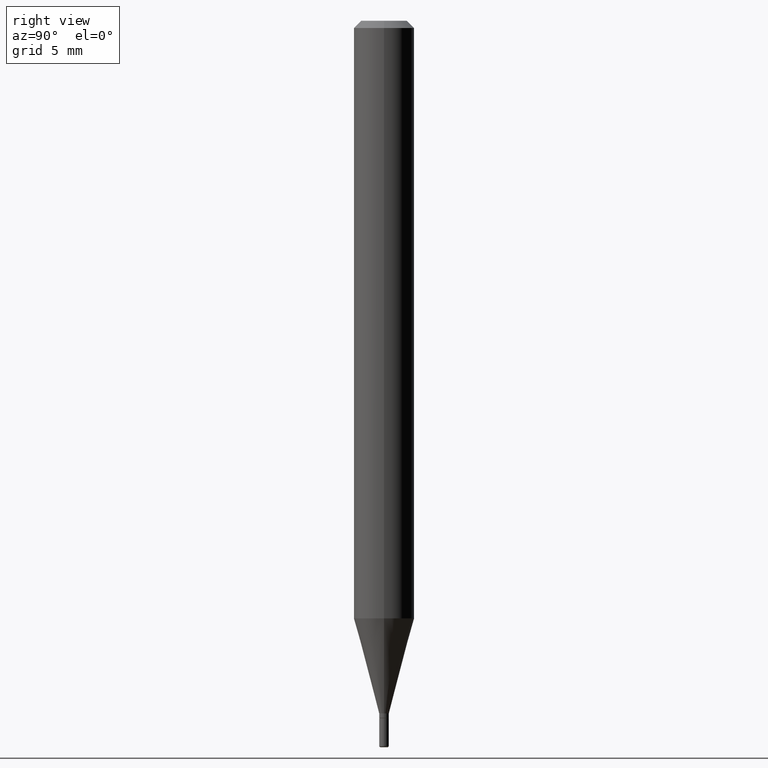
[diagram: clean part render]
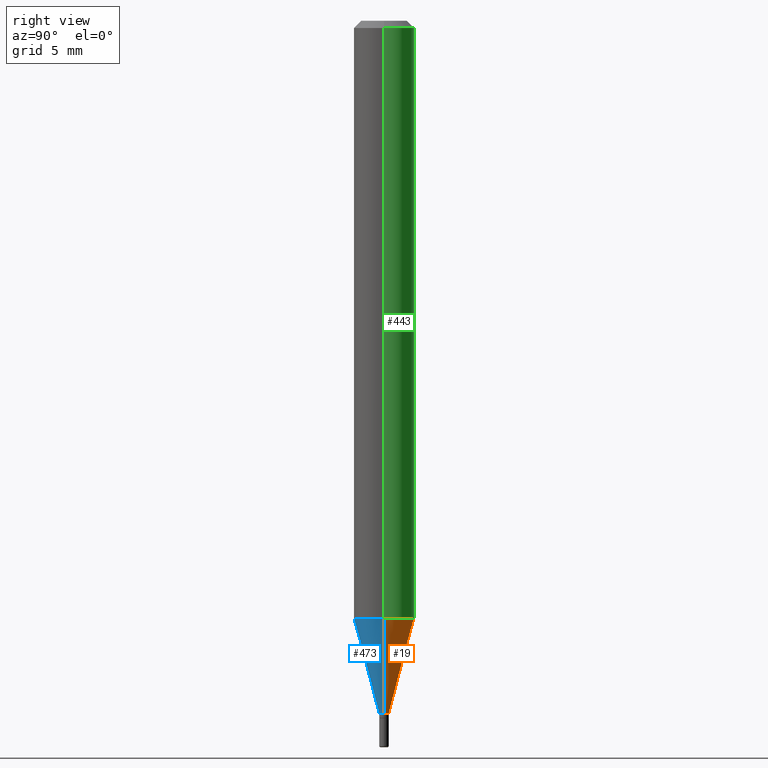
[diagram: same view with three faces highlighted in distinct colors, each labeled with its STEP entity id]
A machine part, right view with three faces highlighted in distinct colors.
Their STEP definitions:

[orange] entity #19 — the highlighted conical surface has half-angle 15 deg.
#19 = ADVANCED_FACE ( 'NONE', ( #210 ), #448, .T. ) ;
#35 = EDGE_CURVE ( 'NONE', #464, #444, #43, .T. ) ;
#43 = CIRCLE ( 'NONE', #209, 0.009999999999999911737 ) ;
#50 = CARTESIAN_POINT ( 'NONE',  ( 0.009999999999999911737, -5.062647941322559142E-15, -1.429999999999999716 ) ) ;
#53 = DIRECTION ( 'NONE',  ( -2.445468806185136597E-29, 3.491481338843145583E-15, 1.000000000000000000 ) ) ;
#89 = ORIENTED_EDGE ( 'NONE', *, *, #35, .T. ) ;
#120 = DIRECTION ( 'NONE',  ( 1.000000000000000000, -6.982962677686262766E-15, 0.000000000000000000 ) ) ;
#131 = AXIS2_PLACEMENT_3D ( 'NONE', #319, #507, #120 ) ;
#139 = AXIS2_PLACEMENT_3D ( 'NONE', #484, #53, #211 ) ;
#143 = LINE ( 'NONE', #465, #262 ) ;
#169 = DIRECTION ( 'NONE',  ( 0.2588190451025205729, 1.565188264969628081E-15, 0.9659258262890684232 ) ) ;
#170 = CARTESIAN_POINT ( 'NONE',  ( 0.009999999999999911737, -5.062647941322559142E-15, -1.429999999999999716 ) ) ;
#197 = EDGE_CURVE ( 'NONE', #444, #274, #143, .T. ) ;
#203 = CARTESIAN_POINT ( 'NONE',  ( -0.06249999999999999306, -3.864633852807968480E-15, -1.234067332602633238 ) ) ;
#209 = AXIS2_PLACEMENT_3D ( 'NONE', #321, #478, #338 ) ;
#210 = FACE_OUTER_BOUND ( 'NONE', #481, .T. ) ;
#211 = DIRECTION ( 'NONE',  ( 1.000000000000000000, -6.982962677686297476E-15, 0.000000000000000000 ) ) ;
#227 = CIRCLE ( 'NONE', #131, 0.06250000000000000000 ) ;
#262 = VECTOR ( 'NONE', #300, 39.37007874015748143 ) ;
#274 = VERTEX_POINT ( 'NONE', #203 ) ;
#278 = ORIENTED_EDGE ( 'NONE', *, *, #335, .F. ) ;
#293 = LINE ( 'NONE', #170, #413 ) ;
#300 = DIRECTION ( 'NONE',  ( -0.2588190451025205729, 5.211531920934545520E-15, 0.9659258262890684232 ) ) ;
#306 = VERTEX_POINT ( 'NONE', #348 ) ;
#319 = CARTESIAN_POINT ( 'NONE',  ( 3.017873166611837280E-29, -4.308723062658031096E-15, -1.234067332602633238 ) ) ;
#321 = CARTESIAN_POINT ( 'NONE',  ( 3.497020392844744638E-29, -4.992818314545696633E-15, -1.429999999999999716 ) ) ;
#327 = CARTESIAN_POINT ( 'NONE',  ( -0.009999999999999911737, -4.393198946888827121E-15, -1.429999999999999716 ) ) ;
#335 = EDGE_CURVE ( 'NONE', #306, #274, #227, .T. ) ;
#338 = DIRECTION ( 'NONE',  ( 1.000000000000000000, -6.982962677686297476E-15, 0.000000000000000000 ) ) ;
#348 = CARTESIAN_POINT ( 'NONE',  ( 0.06249999999999999306, -4.745158230013422766E-15, -1.234067332602633238 ) ) ;
#379 = EDGE_CURVE ( 'NONE', #464, #306, #293, .T. ) ;
#413 = VECTOR ( 'NONE', #169, 39.37007874015748143 ) ;
#427 = ORIENTED_EDGE ( 'NONE', *, *, #197, .T. ) ;
#444 = VERTEX_POINT ( 'NONE', #327 ) ;
#448 = CONICAL_SURFACE ( 'NONE', #139, 0.009999999999999911737, 0.2617993877991492413 ) ;
#464 = VERTEX_POINT ( 'NONE', #50 ) ;
#465 = CARTESIAN_POINT ( 'NONE',  ( -0.009999999999999911737, -4.921764040969687340E-15, -1.429999999999999716 ) ) ;
#478 = DIRECTION ( 'NONE',  ( -2.445468806185136597E-29, 3.491481338843145583E-15, 1.000000000000000000 ) ) ;
#481 = EDGE_LOOP ( 'NONE', ( #89, #427, #278, #516 ) ) ;
#484 = CARTESIAN_POINT ( 'NONE',  ( 3.497020392844744638E-29, -4.992818314545696633E-15, -1.429999999999999716 ) ) ;
#507 = DIRECTION ( 'NONE',  ( -2.445468806185136597E-29, 3.491481338843145583E-15, 1.000000000000000000 ) ) ;
#516 = ORIENTED_EDGE ( 'NONE', *, *, #379, .F. ) ;

[blue] entity #473 — the highlighted conical surface has half-angle 15 deg.
#8 = CIRCLE ( 'NONE', #479, 0.009999999999999911737 ) ;
#13 = CARTESIAN_POINT ( 'NONE',  ( 3.497020392844744638E-29, -4.992818314545696633E-15, -1.429999999999999716 ) ) ;
#15 = AXIS2_PLACEMENT_3D ( 'NONE', #360, #512, #239 ) ;
#50 = CARTESIAN_POINT ( 'NONE',  ( 0.009999999999999911737, -5.062647941322559142E-15, -1.429999999999999716 ) ) ;
#130 = DIRECTION ( 'NONE',  ( 1.000000000000000000, -6.982962677686297476E-15, 0.000000000000000000 ) ) ;
#135 = FACE_OUTER_BOUND ( 'NONE', #271, .T. ) ;
#143 = LINE ( 'NONE', #465, #262 ) ;
#169 = DIRECTION ( 'NONE',  ( 0.2588190451025205729, 1.565188264969628081E-15, 0.9659258262890684232 ) ) ;
#170 = CARTESIAN_POINT ( 'NONE',  ( 0.009999999999999911737, -5.062647941322559142E-15, -1.429999999999999716 ) ) ;
#176 = DIRECTION ( 'NONE',  ( 1.000000000000000000, -6.982962677686297476E-15, 0.000000000000000000 ) ) ;
#191 = ORIENTED_EDGE ( 'NONE', *, *, #379, .T. ) ;
#197 = EDGE_CURVE ( 'NONE', #444, #274, #143, .T. ) ;
#203 = CARTESIAN_POINT ( 'NONE',  ( -0.06249999999999999306, -3.864633852807968480E-15, -1.234067332602633238 ) ) ;
#218 = CARTESIAN_POINT ( 'NONE',  ( 3.497020392844744638E-29, -4.992818314545696633E-15, -1.429999999999999716 ) ) ;
#231 = EDGE_CURVE ( 'NONE', #274, #306, #513, .T. ) ;
#239 = DIRECTION ( 'NONE',  ( 1.000000000000000000, -6.982962677686262766E-15, 0.000000000000000000 ) ) ;
#242 = ORIENTED_EDGE ( 'NONE', *, *, #197, .F. ) ;
#262 = VECTOR ( 'NONE', #300, 39.37007874015748143 ) ;
#271 = EDGE_LOOP ( 'NONE', ( #242, #354, #191, #391 ) ) ;
#274 = VERTEX_POINT ( 'NONE', #203 ) ;
#293 = LINE ( 'NONE', #170, #413 ) ;
#300 = DIRECTION ( 'NONE',  ( -0.2588190451025205729, 5.211531920934545520E-15, 0.9659258262890684232 ) ) ;
#306 = VERTEX_POINT ( 'NONE', #348 ) ;
#323 = AXIS2_PLACEMENT_3D ( 'NONE', #13, #334, #176 ) ;
#327 = CARTESIAN_POINT ( 'NONE',  ( -0.009999999999999911737, -4.393198946888827121E-15, -1.429999999999999716 ) ) ;
#329 = DIRECTION ( 'NONE',  ( -2.445468806185136597E-29, 3.491481338843145583E-15, 1.000000000000000000 ) ) ;
#334 = DIRECTION ( 'NONE',  ( -2.445468806185136597E-29, 3.491481338843145583E-15, 1.000000000000000000 ) ) ;
#348 = CARTESIAN_POINT ( 'NONE',  ( 0.06249999999999999306, -4.745158230013422766E-15, -1.234067332602633238 ) ) ;
#354 = ORIENTED_EDGE ( 'NONE', *, *, #450, .T. ) ;
#360 = CARTESIAN_POINT ( 'NONE',  ( 3.017873166611837280E-29, -4.308723062658031096E-15, -1.234067332602633238 ) ) ;
#365 = CONICAL_SURFACE ( 'NONE', #323, 0.009999999999999911737, 0.2617993877991492413 ) ;
#379 = EDGE_CURVE ( 'NONE', #464, #306, #293, .T. ) ;
#391 = ORIENTED_EDGE ( 'NONE', *, *, #231, .F. ) ;
#413 = VECTOR ( 'NONE', #169, 39.37007874015748143 ) ;
#444 = VERTEX_POINT ( 'NONE', #327 ) ;
#450 = EDGE_CURVE ( 'NONE', #444, #464, #8, .T. ) ;
#464 = VERTEX_POINT ( 'NONE', #50 ) ;
#465 = CARTESIAN_POINT ( 'NONE',  ( -0.009999999999999911737, -4.921764040969687340E-15, -1.429999999999999716 ) ) ;
#473 = ADVANCED_FACE ( 'NONE', ( #135 ), #365, .T. ) ;
#479 = AXIS2_PLACEMENT_3D ( 'NONE', #218, #329, #130 ) ;
#512 = DIRECTION ( 'NONE',  ( -2.445468806185136597E-29, 3.491481338843145583E-15, 1.000000000000000000 ) ) ;
#513 = CIRCLE ( 'NONE', #15, 0.06250000000000000000 ) ;

[green] entity #443 — the highlighted cylindrical surface (edge-blend (fillet) strip) has radius 1.5875 mm, axis along (-0, 0, 1).
#9 = DIRECTION ( 'NONE',  ( -2.445468806185136597E-29, 3.491481338843145583E-15, 1.000000000000000000 ) ) ;
#11 = DIRECTION ( 'NONE',  ( -2.445468806185136597E-29, 3.491481338843145583E-15, 1.000000000000000000 ) ) ;
#31 = EDGE_CURVE ( 'NONE', #153, #116, #180, .T. ) ;
#41 = VECTOR ( 'NONE', #402, 39.37007874015748143 ) ;
#46 = CARTESIAN_POINT ( 'NONE',  ( 0.06250000000000000000, -4.364351673553916694E-16, 3.047610484872459871E-30 ) ) ;
#55 = EDGE_CURVE ( 'NONE', #274, #116, #140, .T. ) ;
#58 = VECTOR ( 'NONE', #425, 39.37007874015748143 ) ;
#88 = ORIENTED_EDGE ( 'NONE', *, *, #335, .T. ) ;
#95 = AXIS2_PLACEMENT_3D ( 'NONE', #405, #11, #449 ) ;
#116 = VERTEX_POINT ( 'NONE', #141 ) ;
#120 = DIRECTION ( 'NONE',  ( 1.000000000000000000, -6.982962677686262766E-15, 0.000000000000000000 ) ) ;
#131 = AXIS2_PLACEMENT_3D ( 'NONE', #319, #507, #120 ) ;
#140 = LINE ( 'NONE', #223, #58 ) ;
#141 = CARTESIAN_POINT ( 'NONE',  ( -0.06250000000000000000, -1.736458431520275880E-15, -0.01499999999999970281 ) ) ;
#153 = VERTEX_POINT ( 'NONE', #339 ) ;
#157 = ORIENTED_EDGE ( 'NONE', *, *, #219, .F. ) ;
#166 = CARTESIAN_POINT ( 'NONE',  ( 3.668203209277632395E-31, -5.237222008264614861E-17, -0.01499999999999970281 ) ) ;
#180 = CIRCLE ( 'NONE', #199, 0.06250000000000000000 ) ;
#199 = AXIS2_PLACEMENT_3D ( 'NONE', #166, #9, #240 ) ;
#203 = CARTESIAN_POINT ( 'NONE',  ( -0.06249999999999999306, -3.864633852807968480E-15, -1.234067332602633238 ) ) ;
#219 = EDGE_CURVE ( 'NONE', #306, #153, #382, .T. ) ;
#223 = CARTESIAN_POINT ( 'NONE',  ( -0.06250000000000000000, 4.440892098500626162E-16, -3.074334431409316114E-30 ) ) ;
#227 = CIRCLE ( 'NONE', #131, 0.06250000000000000000 ) ;
#240 = DIRECTION ( 'NONE',  ( 1.000000000000000000, -6.982962677686266711E-15, 0.000000000000000000 ) ) ;
#273 = EDGE_LOOP ( 'NONE', ( #88, #504, #292, #157 ) ) ;
#274 = VERTEX_POINT ( 'NONE', #203 ) ;
#290 = FACE_OUTER_BOUND ( 'NONE', #273, .T. ) ;
#292 = ORIENTED_EDGE ( 'NONE', *, *, #31, .F. ) ;
#306 = VERTEX_POINT ( 'NONE', #348 ) ;
#319 = CARTESIAN_POINT ( 'NONE',  ( 3.017873166611837280E-29, -4.308723062658031096E-15, -1.234067332602633238 ) ) ;
#335 = EDGE_CURVE ( 'NONE', #306, #274, #227, .T. ) ;
#339 = CARTESIAN_POINT ( 'NONE',  ( 0.06250000000000000000, -4.888073874380378612E-16, -0.01499999999999970281 ) ) ;
#348 = CARTESIAN_POINT ( 'NONE',  ( 0.06249999999999999306, -4.745158230013422766E-15, -1.234067332602633238 ) ) ;
#382 = LINE ( 'NONE', #46, #41 ) ;
#402 = DIRECTION ( 'NONE',  ( -2.445468806185136877E-29, 3.491481338843145188E-15, 1.000000000000000000 ) ) ;
#405 = CARTESIAN_POINT ( 'NONE',  ( 0.000000000000000000, 0.000000000000000000, 0.000000000000000000 ) ) ;
#425 = DIRECTION ( 'NONE',  ( -2.445468806185136877E-29, 3.491481338843145188E-15, 1.000000000000000000 ) ) ;
#443 = ADVANCED_FACE ( 'NONE', ( #290 ), #485, .T. ) ;
#449 = DIRECTION ( 'NONE',  ( 1.000000000000000000, -6.982962677686266711E-15, 4.876176775795935793E-29 ) ) ;
#485 = CYLINDRICAL_SURFACE ( 'NONE', #95, 0.06250000000000000000 ) ;
#504 = ORIENTED_EDGE ( 'NONE', *, *, #55, .T. ) ;
#507 = DIRECTION ( 'NONE',  ( -2.445468806185136597E-29, 3.491481338843145583E-15, 1.000000000000000000 ) ) ;